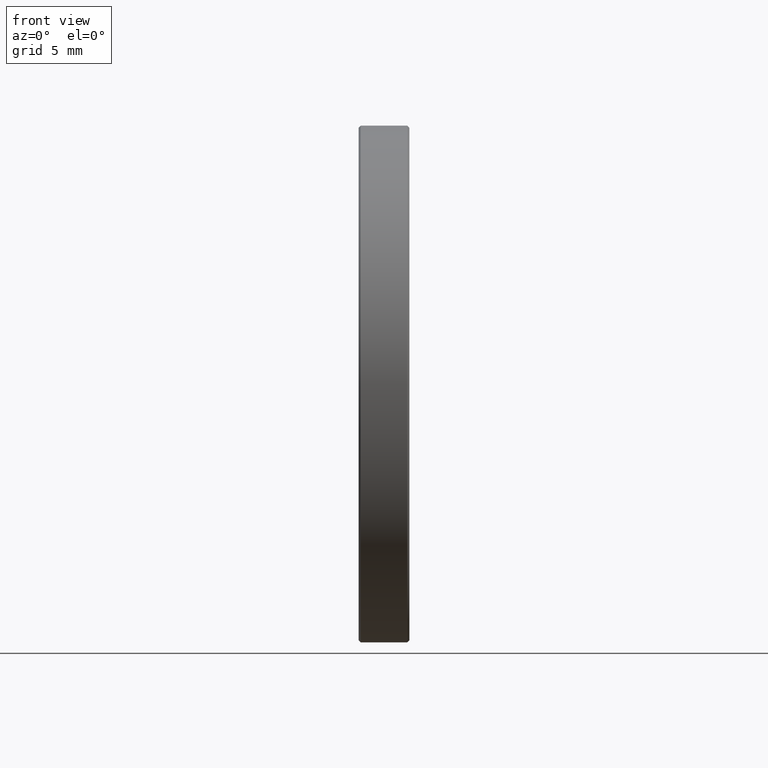
[diagram: clean part render]
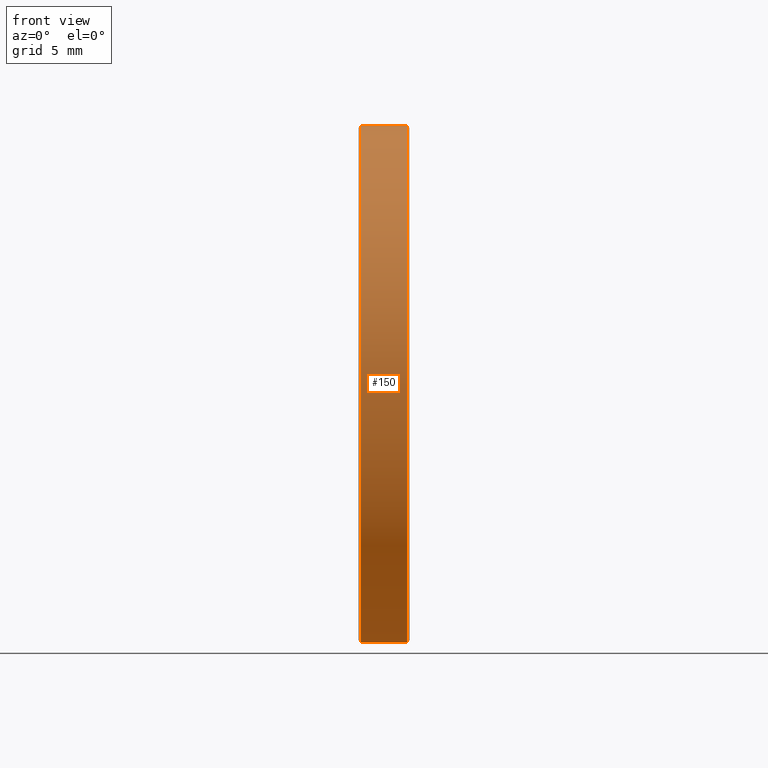
[diagram: same view with one face highlighted and labeled with its STEP entity id]
A machine part, front view. The second image highlights one B-rep face of the part: STEP entity #150.
In plain terms, the highlighted cylindrical surface (partial cylindrical patch) has radius 12.7 mm, axis along (-1, -0, -0).
Its self-contained STEP definition (entity closure, byte-faithful):
#15 = CARTESIAN_POINT ( 'NONE',  ( -2.434863851253203482, 1.436758841085141070, 25.39999999999999858 ) ) ;
#26 = EDGE_LOOP ( 'NONE', ( #312, #475, #617, #368 ) ) ;
#50 = CARTESIAN_POINT ( 'NONE',  ( -2.434863851253203482, 1.436758841085141070, 38.09999999999999432 ) ) ;
#76 = CARTESIAN_POINT ( 'NONE',  ( -4.834863851253204281, 1.436758841085141070, 12.69999999999999929 ) ) ;
#89 = CARTESIAN_POINT ( 'NONE',  ( -4.834863851253204281, 1.436758841085142402, 38.09999999999999432 ) ) ;
#104 = CARTESIAN_POINT ( 'NONE',  ( -4.834863851253204281, 1.436758841085141070, 25.39999999999999858 ) ) ;
#145 = VECTOR ( 'NONE', #483, 1000.000000000000000 ) ;
#149 = DIRECTION ( 'NONE',  ( -1.000000000000000000, -0.0000000000000000000, -0.0000000000000000000 ) ) ;
#150 = ADVANCED_FACE ( 'NONE', ( #699 ), #375, .T. ) ;
#167 = DIRECTION ( 'NONE',  ( -1.000000000000000000, 0.0000000000000000000, 0.0000000000000000000 ) ) ;
#175 = LINE ( 'NONE', #294, #669 ) ;
#179 = EDGE_CURVE ( 'NONE', #494, #376, #221, .T. ) ;
#193 = VERTEX_POINT ( 'NONE', #76 ) ;
#205 = DIRECTION ( 'NONE',  ( 0.0000000000000000000, 0.0000000000000000000, 1.000000000000000000 ) ) ;
#221 = CIRCLE ( 'NONE', #620, 12.69999999999999929 ) ;
#224 = LINE ( 'NONE', #50, #145 ) ;
#227 = DIRECTION ( 'NONE',  ( 1.000000000000000000, -0.0000000000000000000, -0.0000000000000000000 ) ) ;
#294 = CARTESIAN_POINT ( 'NONE',  ( -2.434863851253203482, 1.436758841085142402, 12.69999999999999929 ) ) ;
#310 = CIRCLE ( 'NONE', #469, 12.69999999999999929 ) ;
#312 = ORIENTED_EDGE ( 'NONE', *, *, #442, .F. ) ;
#333 = EDGE_CURVE ( 'NONE', #376, #681, #224, .T. ) ;
#349 = EDGE_CURVE ( 'NONE', #681, #193, #310, .T. ) ;
#368 = ORIENTED_EDGE ( 'NONE', *, *, #349, .T. ) ;
#375 = CYLINDRICAL_SURFACE ( 'NONE', #504, 12.69999999999999574 ) ;
#376 = VERTEX_POINT ( 'NONE', #656 ) ;
#407 = CARTESIAN_POINT ( 'NONE',  ( -2.534863851253199574, 1.436758841085141070, 25.39999999999999858 ) ) ;
#442 = EDGE_CURVE ( 'NONE', #494, #193, #175, .T. ) ;
#469 = AXIS2_PLACEMENT_3D ( 'NONE', #104, #227, #654 ) ;
#475 = ORIENTED_EDGE ( 'NONE', *, *, #179, .T. ) ;
#483 = DIRECTION ( 'NONE',  ( -1.000000000000000000, -0.0000000000000000000, -0.0000000000000000000 ) ) ;
#494 = VERTEX_POINT ( 'NONE', #611 ) ;
#504 = AXIS2_PLACEMENT_3D ( 'NONE', #15, #149, #205 ) ;
#559 = DIRECTION ( 'NONE',  ( -1.000000000000000000, -0.0000000000000000000, -0.0000000000000000000 ) ) ;
#611 = CARTESIAN_POINT ( 'NONE',  ( -2.534863851253199574, 1.436758841085142402, 12.69999999999999929 ) ) ;
#617 = ORIENTED_EDGE ( 'NONE', *, *, #333, .T. ) ;
#620 = AXIS2_PLACEMENT_3D ( 'NONE', #407, #167, #762 ) ;
#654 = DIRECTION ( 'NONE',  ( 0.0000000000000000000, 0.0000000000000000000, -1.000000000000000000 ) ) ;
#656 = CARTESIAN_POINT ( 'NONE',  ( -2.534863851253199574, 1.436758841085141070, 38.09999999999999432 ) ) ;
#669 = VECTOR ( 'NONE', #559, 1000.000000000000000 ) ;
#681 = VERTEX_POINT ( 'NONE', #89 ) ;
#699 = FACE_OUTER_BOUND ( 'NONE', #26, .T. ) ;
#762 = DIRECTION ( 'NONE',  ( 0.0000000000000000000, 0.0000000000000000000, -1.000000000000000000 ) ) ;